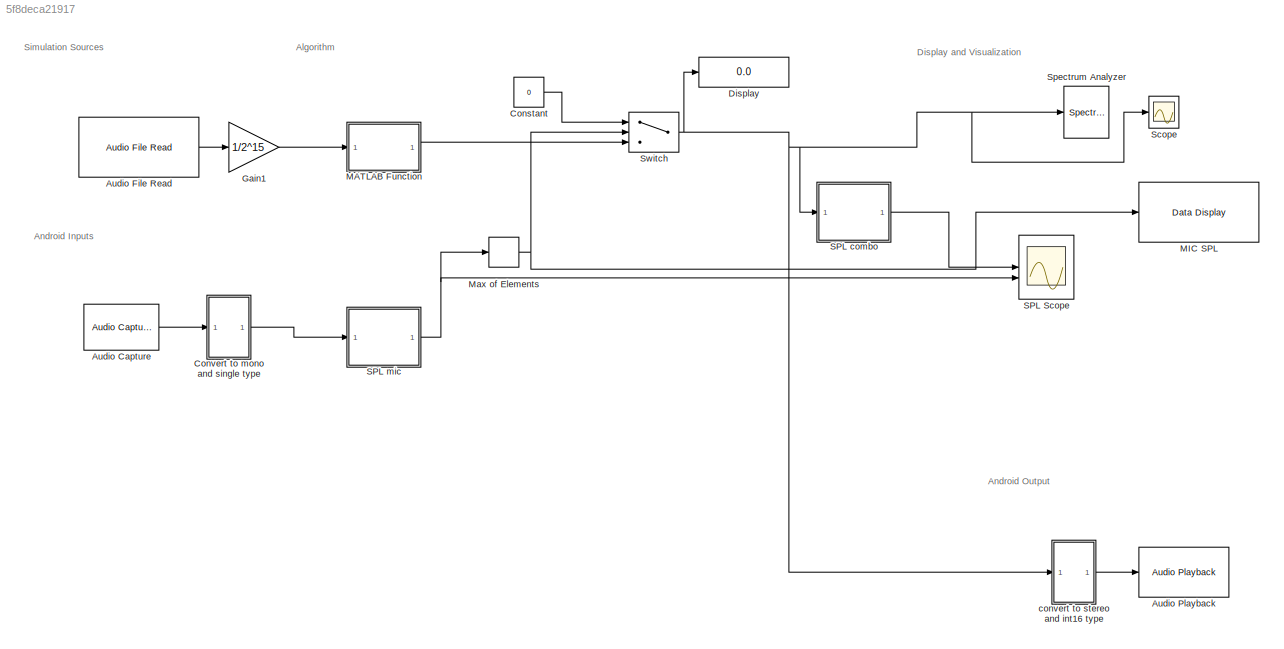
MODEL slx_5f8deca21917
KIND model
CONFIG AbsTol = auto
CONFIG EnableMultiTasking = off
CONFIG FixedStep = auto
CONFIG MaxStep = auto
CONFIG MinStep = auto
CONFIG RelTol = 1e-3
CONFIG SampleTimeConstraint = Unconstrained
CONFIG SolverName = FixedStepAuto
CONFIG StartTime = 0.0
CONFIG StopTime = inf
BLOCK [Reference] Audio Capture  REF=androidaudiovideolib/Audio Capture
  SourceBlock = androidaudiovideolib/Audio Capture
  SourceType = codertarget.internal.androidAudioCapture
BLOCK [Reference] Audio File Read  REF=androidaudiovideolib/Audio File Read
  SourceBlock = androidaudiovideolib/Audio File Read
  SourceType = codertarget.internal.androidAudioFileRead
BLOCK [Reference] Audio Playback  REF=androidaudiovideolib/Audio Playback
  SourceBlock = androidaudiovideolib/Audio Playback
  SourceType = codertarget.internal.androidAudioPlayback
BLOCK [Constant] Constant
  Value = 0
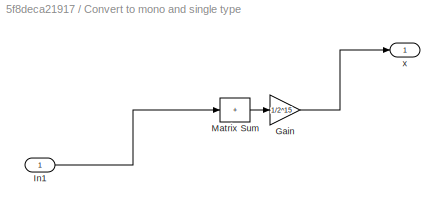
BLOCK [SubSystem] Convert to mono and single type
BLOCK [Gain] Convert to mono and single type/Gain
  Gain = 1/2^15
  OutDataTypeStr = single
BLOCK [Inport] Convert to mono and single type/In1
BLOCK [Sum] Convert to mono and single type/Matrix Sum
  CollapseDim = 2
  CollapseMode = Specified dimension
  IconShape = rectangular
  Inputs = +
BLOCK [Outport] Convert to mono and single type/x
BLOCK [Display] Display
  Decimation = 1
BLOCK [Gain] Gain1
  Gain = 1/2^15
  OutDataTypeStr = single
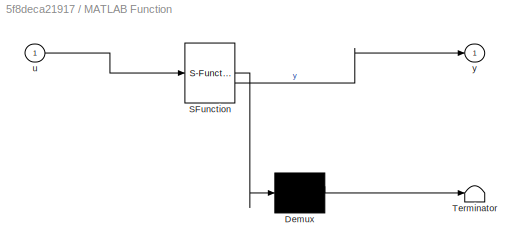
BLOCK [SubSystem] MATLAB Function
  ErrorFcn = Stateflow.Translate.translate
  PermitHierarchicalResolution = ExplicitOnly
  SFBlockType = MATLAB Function
  TreatAsAtomicUnit = on
BLOCK [Demux] MATLAB Function/ Demux 
  Outputs = 1
BLOCK [S-Function] MATLAB Function/ SFunction 
  EnableBusSupport = on
  FunctionName = sf_sfun
  PortCounts = [1 2]
  SFcnIsStateOwnerBlock = off
  SFunctionDeploymentMode = off
  Tag = Stateflow S-Function 3
BLOCK [Terminator] MATLAB Function/ Terminator 
BLOCK [Inport] MATLAB Function/u
BLOCK [Outport] MATLAB Function/y
BLOCK [Reference] MIC SPL  REF=androiduilib/Data Display
  SourceBlock = androiduilib/Data Display
  SourceType = codertarget.internal.androidDataDisplay
BLOCK [MinMax] Max of Elements
  Function = max
BLOCK [Scope] SPL Scope
  DefaultConfigurationName = spbscopes.TimeScopeBlockCfg
  Floating = off
  NumInputPorts = 2
  ScopeSpecificationString = spbscopes.TimeScopeBlockCfg('CurrentConfiguration', extmgr.ConfigurationSet(extmgr.Configuration('Core','General UI',true),extmgr.Configuration('Core','Source UI',true),extmgr.Configuration('Sources','WiredSimulink',true,'DataLoggingVariableName','ScopeData2'),extmgr.Configuration('Visuals','Time Domain',true,'DisplayPropertyDefaults',struct('MinYLimReal','-24','MaxYLimReal','120','YLabelReal','Am...<+1579ch>
  UserDataPersistent = on
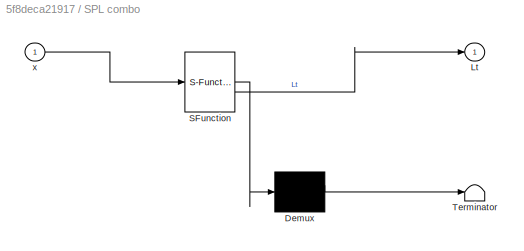
BLOCK [SubSystem] SPL combo
  ErrorFcn = Stateflow.Translate.translate
  PermitHierarchicalResolution = ExplicitOnly
  SFBlockType = MATLAB Function
  TreatAsAtomicUnit = on
BLOCK [Demux] SPL combo/ Demux 
  Outputs = 1
BLOCK [S-Function] SPL combo/ SFunction 
  EnableBusSupport = on
  FunctionName = sf_sfun
  PortCounts = [1 2]
  SFcnIsStateOwnerBlock = off
  SFunctionDeploymentMode = off
  Tag = Stateflow S-Function 2
BLOCK [Terminator] SPL combo/ Terminator 
BLOCK [Outport] SPL combo/Lt
BLOCK [Inport] SPL combo/x
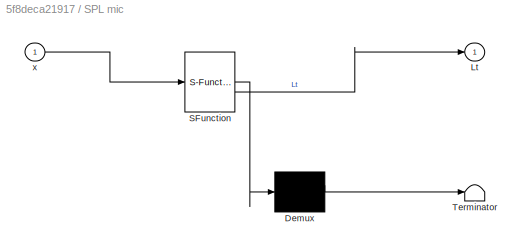
BLOCK [SubSystem] SPL mic
  ErrorFcn = Stateflow.Translate.translate
  PermitHierarchicalResolution = ExplicitOnly
  SFBlockType = MATLAB Function
  TreatAsAtomicUnit = on
BLOCK [Demux] SPL mic/ Demux 
  Outputs = 1
BLOCK [S-Function] SPL mic/ SFunction 
  EnableBusSupport = on
  FunctionName = sf_sfun
  PortCounts = [1 2]
  SFcnIsStateOwnerBlock = off
  SFunctionDeploymentMode = off
  Tag = Stateflow S-Function 1
BLOCK [Terminator] SPL mic/ Terminator 
BLOCK [Outport] SPL mic/Lt
BLOCK [Inport] SPL mic/x
BLOCK [Scope] Scope
  Floating = off
  NumInputPorts = 1
  ScopeSpecificationString = Simulink.scopes.TimeScopeBlockCfg('CurrentConfiguration', extmgr.ConfigurationSet(extmgr.Configuration('Core','General UI',true),extmgr.Configuration('Core','Source UI',true),extmgr.Configuration('Sources','WiredSimulink',true),extmgr.Configuration('Visuals','Time Domain',true,'InputProcessing','FrameProcessing','SerializedDisplays',{struct('MinYLimReal','-1','MaxYLimReal','1','YLabelReal','','Min...<+1363ch>
BLOCK [SpectrumAnalyzer] Spectrum Analyzer
  AveragingMethod = Exponential
  GraphicalSettings = {"GraphicalSettings":{"Style":{"BackgroundColor":[0.12941176470588237,0.12941176470588237,0.12941176470588237],"AxesColor":[0,0,0],"LabelsColor":[0.6862745098039216,0.6862745098039216,0.6862745098039216],"PreserveColors":false,"Visible":[true],"LineStyle":["-"],"LineColor":[[1,1,0.06666666666666667]],"LineWidth":[0.5],"Marker":["none"],"FontSize":"small"},"Cursors":{"Enabled":false,"XLocation":[2,...<+875ch>
  SampleRate = 44100
  ScopeFrameLocation = window
  ScopeSpecificationString = spbscopes.SpectrumAnalyzerBlockCfg('CurrentConfiguration', extmgr.ConfigurationSet(extmgr.Configuration('Core','General UI',true),extmgr.Configuration('Core','Source UI',true),extmgr.Configuration('Sources','WiredSimulink',true),extmgr.Configuration('Visuals','Spectrum',true,'AxesProperties',struct('Color',{[0 0 0],[0 0 0]},'XColor',{[0.686274509803922 0.686274509803922 0.686274509803922],[0.68627...<+1910ch>
  Span = 44100
  StartFrequency = -22050
  StopFrequency = 22050
  WasSavedAsWebScope = on
  WindowPosition = [-4.000000,268.000000,800.000000,450.000000,]
  YLimits = [-105.30043583,23.73250747]
BLOCK [Switch] Switch
  InputSameDT = off
  SaturateOnIntegerOverflow = off
  Threshold = 50
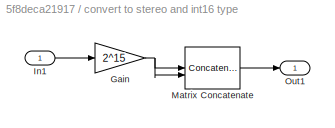
BLOCK [SubSystem] convert to stereo and int16 type
BLOCK [Gain] convert to stereo and int16 type/Gain
  Gain = 2^15
  OutDataTypeStr = int16
  SaturateOnIntegerOverflow = on
BLOCK [Inport] convert to stereo and int16 type/In1
BLOCK [Concatenate] convert to stereo and int16 type/Matrix Concatenate
  ConcatenateDimension = 2
  Mode = Multidimensional array
BLOCK [Outport] convert to stereo and int16 type/Out1
ANNOTATION (root): Algorithm
ANNOTATION (root): Android Inputs
ANNOTATION (root): Android Output
ANNOTATION (root): Display and Visualization
ANNOTATION (root): Simulation Sources
LINE Audio Capture:1 -> Convert to mono and single type:1
LINE Audio File Read:1 -> Gain1:1
LINE Constant:1 -> Switch:1
LINE Convert to mono and single type/Gain:1 -> Convert to mono and single type/x:1
LINE Convert to mono and single type/In1:1 -> Convert to mono and single type/Matrix Sum:1
LINE Convert to mono and single type/Matrix Sum:1 -> Convert to mono and single type/Gain:1
LINE Convert to mono and single type:1 -> SPL mic:1
LINE Gain1:1 -> MATLAB Function:1
LINE MATLAB Function:1 -> Switch:3
NET Max of Elements:1 -> MIC SPL:1, Switch:2
LINE SPL combo:1 -> SPL Scope:1
NET SPL mic:1 -> Max of Elements:1, SPL Scope:2
NET Switch:1 -> Display:1, SPL combo:1, Scope:1, Spectrum Analyzer:1, convert to stereo and int16 type:1
NET convert to stereo and int16 type/Gain:1 -> convert to stereo and int16 type/Matrix Concatenate:1, convert to stereo and int16 type/Matrix Concatenate:2
LINE convert to stereo and int16 type/In1:1 -> convert to stereo and int16 type/Gain:1
LINE convert to stereo and int16 type/Matrix Concatenate:1 -> convert to stereo and int16 type/Out1:1
LINE convert to stereo and int16 type:1 -> Audio Playback:1
note: NET lines group one-source signal fan-out (src -> all destinations, sorted); 1:1 wires keep LINE
CHART SPL mic states=1 transitions=1
  STATE_LABEL 'eML_blk_kernel()'
  STATE_LABEL 'SCRIPT:\nfunction Lt  = fcn(x)\n\nSPL = splMeter(TimeWeighting="Fast", ...\n    FrequencyWeighting="A-weighting", ...\n    SampleRate=44100, ...\n    TimeInterval=2);\n% Lt = zeros(size(x)); \n% [Lt,Leq,Lpeak,Lmax] = SPL(x);\n\nLt= SPL(x);'
CHART SPL combo states=1 transitions=1
  STATE_LABEL 'eML_blk_kernel()'
  STATE_LABEL 'SCRIPT:\nfunction Lt  = fcn(x)\n\nSPL = splMeter(TimeWeighting="Fast", ...\n    FrequencyWeighting="A-weighting", ...\n    SampleRate=44100, ...\n    TimeInterval=10);\n% Lt = zeros(size(x)); \n% [Lt,Leq,Lpeak,Lmax] = SPL(x);\n\nLt= SPL(x);'
CHART MATLAB Function states=1 transitions=1
  STATE_LABEL 'eML_blk_kernel()'
  STATE_LABEL 'SCRIPT:\nfunction y = fcn(u)\n\ny = u(:,1);\n'
CHART  states=0 transitions=0
CHART  states=0 transitions=0
CHART  states=0 transitions=0
